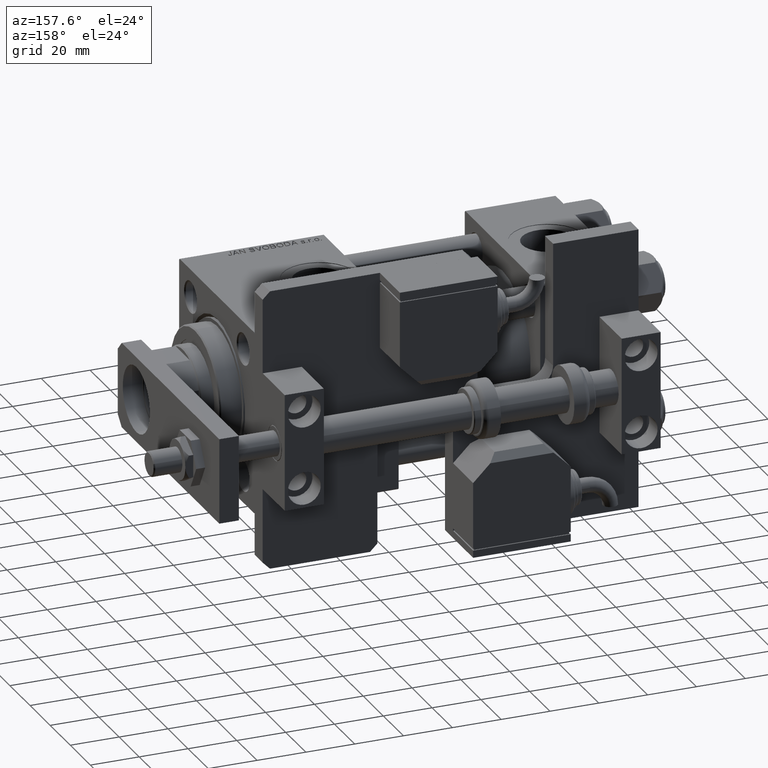
[diagram: clean part render]
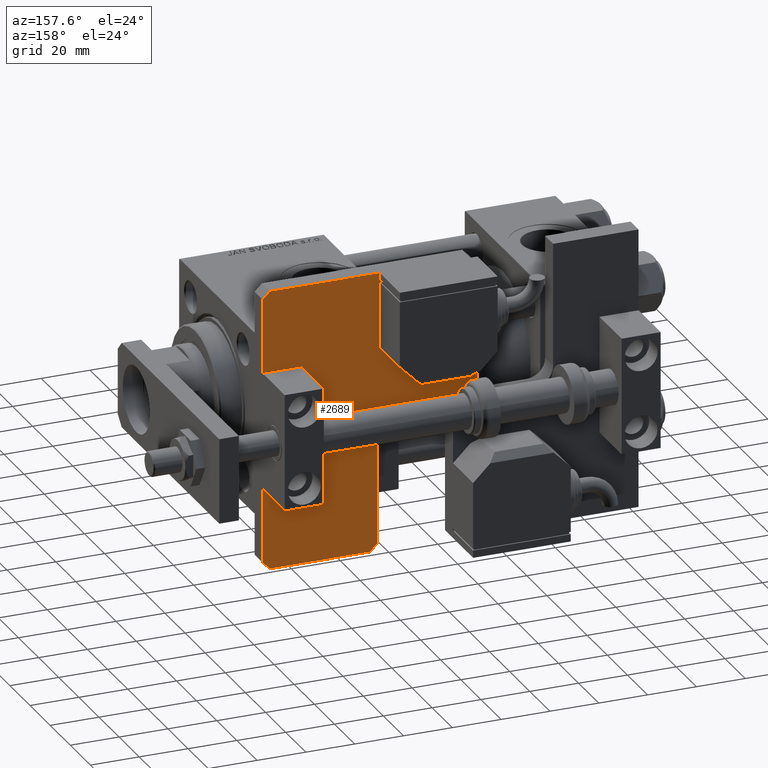
[diagram: same view with one face highlighted and labeled with its STEP entity id]
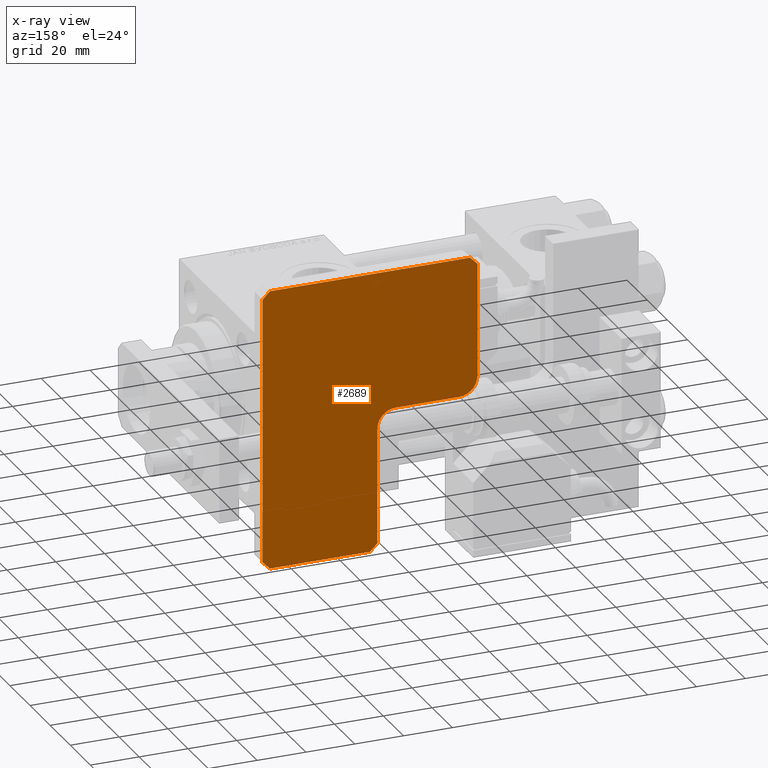
[diagram: x-ray of the same camera — body ghosted, the highlighted face saturated]
A machine part, auxiliary view. The second image highlights one B-rep face of the part: STEP entity #2689.
The next image is the same camera in x-ray: the body ghosted, the highlighted face saturated — about 0% of this face is hidden behind the body in this view.
In plain terms, the highlighted planar face has unit normal (0, 1, 0).
Its self-contained STEP definition (entity closure, byte-faithful):
#49 = PLANE ( 'NONE',  #38390 ) ;
#1128 = EDGE_CURVE ( 'NONE', #26173, #4395, #40305, .T. ) ;
#1908 = DIRECTION ( 'NONE',  ( 0.000000000000000000, 1.000000000000000000, 0.000000000000000000 ) ) ;
#2689 = ADVANCED_FACE ( 'NONE', ( #5301 ), #49, .T. ) ;
#3683 = CARTESIAN_POINT ( 'NONE',  ( 114.9999999999999858, 0.000000000000000000, 8.000000000000000000 ) ) ;
#3810 = ORIENTED_EDGE ( 'NONE', *, *, #10974, .T. ) ;
#4395 = VERTEX_POINT ( 'NONE', #18001 ) ;
#4544 = ORIENTED_EDGE ( 'NONE', *, *, #38968, .T. ) ;
#4676 = DIRECTION ( 'NONE',  ( -0.7071067811865441310, 0.7071067811865507924, -0.000000000000000000 ) ) ;
#4757 = VECTOR ( 'NONE', #1908, 1000.000000000000000 ) ;
#4845 = VERTEX_POINT ( 'NONE', #49595 ) ;
#5016 = DIRECTION ( 'NONE',  ( 1.000000000000000000, 0.000000000000000000, -0.000000000000000000 ) ) ;
#5301 = FACE_OUTER_BOUND ( 'NONE', #56111, .T. ) ;
#5643 = DIRECTION ( 'NONE',  ( -1.000000000000000000, 0.000000000000000000, 0.000000000000000000 ) ) ;
#5994 = CARTESIAN_POINT ( 'NONE',  ( 56.99999999999999289, 46.99999999999998579, 8.000000000000000000 ) ) ;
#6934 = ORIENTED_EDGE ( 'NONE', *, *, #19111, .T. ) ;
#6957 = VECTOR ( 'NONE', #13583, 1000.000000000000000 ) ;
#7323 = DIRECTION ( 'NONE',  ( 0.000000000000000000, -1.000000000000000000, 0.000000000000000000 ) ) ;
#7612 = CARTESIAN_POINT ( 'NONE',  ( 0.000000000000000000, 88.00000000000000000, 8.000000000000000000 ) ) ;
#8744 = VERTEX_POINT ( 'NONE', #28598 ) ;
#8824 = DIRECTION ( 'NONE',  ( 0.000000000000000000, -0.000000000000000000, 1.000000000000000000 ) ) ;
#8979 = VERTEX_POINT ( 'NONE', #42820 ) ;
#9873 = EDGE_CURVE ( 'NONE', #28056, #41979, #21235, .T. ) ;
#10974 = EDGE_CURVE ( 'NONE', #8744, #29196, #46440, .T. ) ;
#12145 = DIRECTION ( 'NONE',  ( 1.000000000000000000, 0.000000000000000000, 0.000000000000000000 ) ) ;
#12463 = VERTEX_POINT ( 'NONE', #20787 ) ;
#13154 = VERTEX_POINT ( 'NONE', #35001 ) ;
#13583 = DIRECTION ( 'NONE',  ( -1.000000000000000000, 0.000000000000000000, 0.000000000000000000 ) ) ;
#15787 = VECTOR ( 'NONE', #52337, 1000.000000000000114 ) ;
#16269 = EDGE_CURVE ( 'NONE', #8979, #8744, #27339, .T. ) ;
#17568 = LINE ( 'NONE', #27526, #34018 ) ;
#18001 = CARTESIAN_POINT ( 'NONE',  ( 0.000000000000000000, 85.00000000000001421, 8.000000000000000000 ) ) ;
#18087 = ORIENTED_EDGE ( 'NONE', *, *, #21450, .T. ) ;
#18905 = CARTESIAN_POINT ( 'NONE',  ( -42.50000000000000711, 42.50000000000040501, 8.000000000000000000 ) ) ;
#19111 = EDGE_CURVE ( 'NONE', #41979, #4845, #17568, .T. ) ;
#19215 = VECTOR ( 'NONE', #7323, 1000.000000000000000 ) ;
#20787 = CARTESIAN_POINT ( 'NONE',  ( 49.49999999999999289, 88.00000000000000000, 8.000000000000000000 ) ) ;
#20927 = CARTESIAN_POINT ( 'NONE',  ( 49.49999999999999289, 80.49999999999998579, 8.000000000000000000 ) ) ;
#21235 = LINE ( 'NONE', #3683, #54350 ) ;
#21450 = EDGE_CURVE ( 'NONE', #4845, #8979, #22073, .T. ) ;
#21739 = CARTESIAN_POINT ( 'NONE',  ( 114.9999999999999858, 2.999999999999975131, 8.000000000000000000 ) ) ;
#22073 = LINE ( 'NONE', #27353, #6957 ) ;
#23311 = EDGE_CURVE ( 'NONE', #4395, #37652, #47481, .T. ) ;
#24782 = CARTESIAN_POINT ( 'NONE',  ( 55.99999999999947420, -55.99999999999999289, 8.000000000000000000 ) ) ;
#26173 = VERTEX_POINT ( 'NONE', #36611 ) ;
#26228 = VECTOR ( 'NONE', #45934, 1000.000000000000114 ) ;
#26622 = DIRECTION ( 'NONE',  ( -0.000000000000000000, 0.000000000000000000, -1.000000000000000000 ) ) ;
#27132 = DIRECTION ( 'NONE',  ( -0.7071067811865507924, -0.7071067811865441310, -0.000000000000000000 ) ) ;
#27178 = CARTESIAN_POINT ( 'NONE',  ( 1.500000000000001332, 1.499999999999987566, 8.000000000000000000 ) ) ;
#27339 = CIRCLE ( 'NONE', #28266, 7.500000000000007105 ) ;
#27353 = CARTESIAN_POINT ( 'NONE',  ( 114.9999999999999858, 46.99999999999998579, 8.000000000000000000 ) ) ;
#27526 = CARTESIAN_POINT ( 'NONE',  ( 79.50000000000051159, 79.49999999999977263, 8.000000000000000000 ) ) ;
#27538 = CARTESIAN_POINT ( 'NONE',  ( 114.9999999999999858, 43.99999999999998579, 8.000000000000000000 ) ) ;
#27761 = LINE ( 'NONE', #27178, #26228 ) ;
#28056 = VERTEX_POINT ( 'NONE', #21739 ) ;
#28266 = AXIS2_PLACEMENT_3D ( 'NONE', #48628, #26622, #39807 ) ;
#28384 = AXIS2_PLACEMENT_3D ( 'NONE', #20927, #52305, #12145 ) ;
#28598 = CARTESIAN_POINT ( 'NONE',  ( 56.99999999999999289, 54.49999999999998579, 8.000000000000000000 ) ) ;
#29196 = VERTEX_POINT ( 'NONE', #44832 ) ;
#30338 = LINE ( 'NONE', #24782, #15787 ) ;
#30570 = ORIENTED_EDGE ( 'NONE', *, *, #34964, .T. ) ;
#31651 = CARTESIAN_POINT ( 'NONE',  ( 0.000000000000000000, 3.000000000000002665, 8.000000000000000000 ) ) ;
#31808 = EDGE_CURVE ( 'NONE', #13154, #28056, #30338, .T. ) ;
#32595 = LINE ( 'NONE', #33461, #45155 ) ;
#33197 = VERTEX_POINT ( 'NONE', #39622 ) ;
#33461 = CARTESIAN_POINT ( 'NONE',  ( 56.99999999999999289, 88.00000000000000000, 8.000000000000000000 ) ) ;
#34018 = VECTOR ( 'NONE', #4676, 1000.000000000000114 ) ;
#34836 = ORIENTED_EDGE ( 'NONE', *, *, #39155, .T. ) ;
#34964 = EDGE_CURVE ( 'NONE', #37652, #33197, #27761, .T. ) ;
#35001 = CARTESIAN_POINT ( 'NONE',  ( 111.9999999999999858, 0.000000000000000000, 8.000000000000000000 ) ) ;
#35249 = CARTESIAN_POINT ( 'NONE',  ( 0.000000000000000000, 0.000000000000000000, 8.000000000000000000 ) ) ;
#35835 = DIRECTION ( 'NONE',  ( 1.000000000000000000, 0.000000000000000000, 0.000000000000000000 ) ) ;
#36070 = CARTESIAN_POINT ( 'NONE',  ( 0.000000000000000000, 0.000000000000000000, 8.000000000000000000 ) ) ;
#36412 = LINE ( 'NONE', #35249, #54496 ) ;
#36611 = CARTESIAN_POINT ( 'NONE',  ( 3.000000000000002665, 88.00000000000000000, 8.000000000000000000 ) ) ;
#36790 = ORIENTED_EDGE ( 'NONE', *, *, #41051, .T. ) ;
#36875 = ORIENTED_EDGE ( 'NONE', *, *, #1128, .T. ) ;
#37652 = VERTEX_POINT ( 'NONE', #31651 ) ;
#38098 = ORIENTED_EDGE ( 'NONE', *, *, #16269, .T. ) ;
#38390 = AXIS2_PLACEMENT_3D ( 'NONE', #36070, #8824, #5016 ) ;
#38968 = EDGE_CURVE ( 'NONE', #33197, #13154, #36412, .T. ) ;
#39155 = EDGE_CURVE ( 'NONE', #12463, #26173, #32595, .T. ) ;
#39622 = CARTESIAN_POINT ( 'NONE',  ( 2.999999999999975131, 0.000000000000000000, 8.000000000000000000 ) ) ;
#39807 = DIRECTION ( 'NONE',  ( 1.000000000000000000, 0.000000000000000000, 0.000000000000000000 ) ) ;
#40305 = LINE ( 'NONE', #18905, #53195 ) ;
#41051 = EDGE_CURVE ( 'NONE', #29196, #12463, #43342, .T. ) ;
#41476 = ORIENTED_EDGE ( 'NONE', *, *, #23311, .T. ) ;
#41979 = VERTEX_POINT ( 'NONE', #27538 ) ;
#42820 = CARTESIAN_POINT ( 'NONE',  ( 64.50000000000000000, 46.99999999999998579, 8.000000000000000000 ) ) ;
#43342 = CIRCLE ( 'NONE', #28384, 7.500000000000000000 ) ;
#44832 = CARTESIAN_POINT ( 'NONE',  ( 56.99999999999999289, 80.49999999999997158, 8.000000000000000000 ) ) ;
#45155 = VECTOR ( 'NONE', #5643, 1000.000000000000000 ) ;
#45674 = ORIENTED_EDGE ( 'NONE', *, *, #31808, .T. ) ;
#45934 = DIRECTION ( 'NONE',  ( 0.7071067811865441310, -0.7071067811865507924, -0.000000000000000000 ) ) ;
#46440 = LINE ( 'NONE', #5994, #4757 ) ;
#47481 = LINE ( 'NONE', #7612, #19215 ) ;
#48628 = CARTESIAN_POINT ( 'NONE',  ( 64.50000000000000000, 54.49999999999998579, 8.000000000000000000 ) ) ;
#49595 = CARTESIAN_POINT ( 'NONE',  ( 112.0000000000000142, 46.99999999999998579, 8.000000000000000000 ) ) ;
#51758 = DIRECTION ( 'NONE',  ( 0.000000000000000000, 1.000000000000000000, 0.000000000000000000 ) ) ;
#52305 = DIRECTION ( 'NONE',  ( 0.000000000000000000, -0.000000000000000000, 1.000000000000000000 ) ) ;
#52337 = DIRECTION ( 'NONE',  ( 0.7071067811865507924, 0.7071067811865441310, -0.000000000000000000 ) ) ;
#53091 = ORIENTED_EDGE ( 'NONE', *, *, #9873, .T. ) ;
#53195 = VECTOR ( 'NONE', #27132, 1000.000000000000114 ) ;
#54350 = VECTOR ( 'NONE', #51758, 1000.000000000000000 ) ;
#54496 = VECTOR ( 'NONE', #35835, 1000.000000000000000 ) ;
#56111 = EDGE_LOOP ( 'NONE', ( #34836, #36875, #41476, #30570, #4544, #45674, #53091, #6934, #18087, #38098, #3810, #36790 ) ) ;